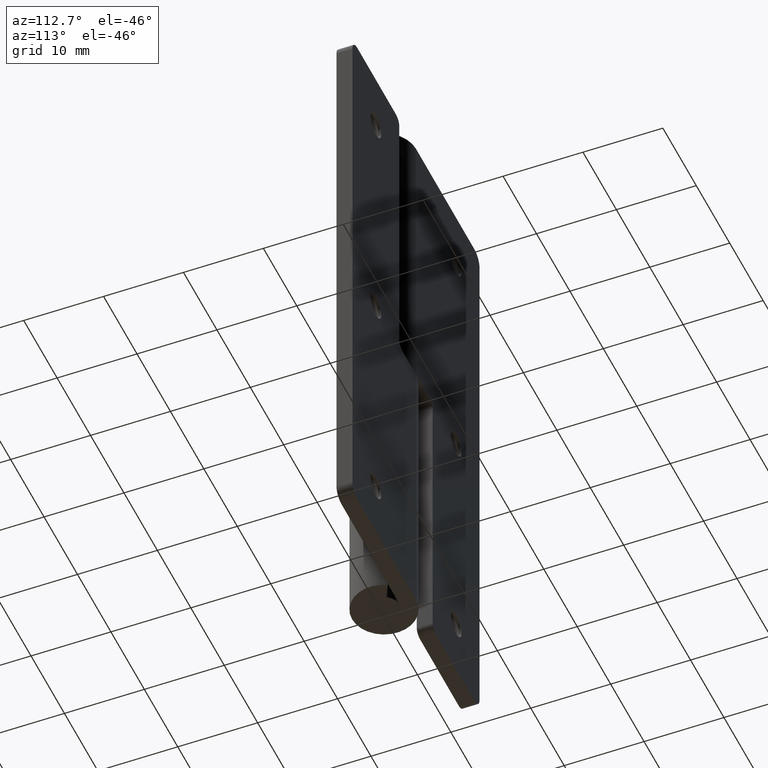
[diagram: clean part render]
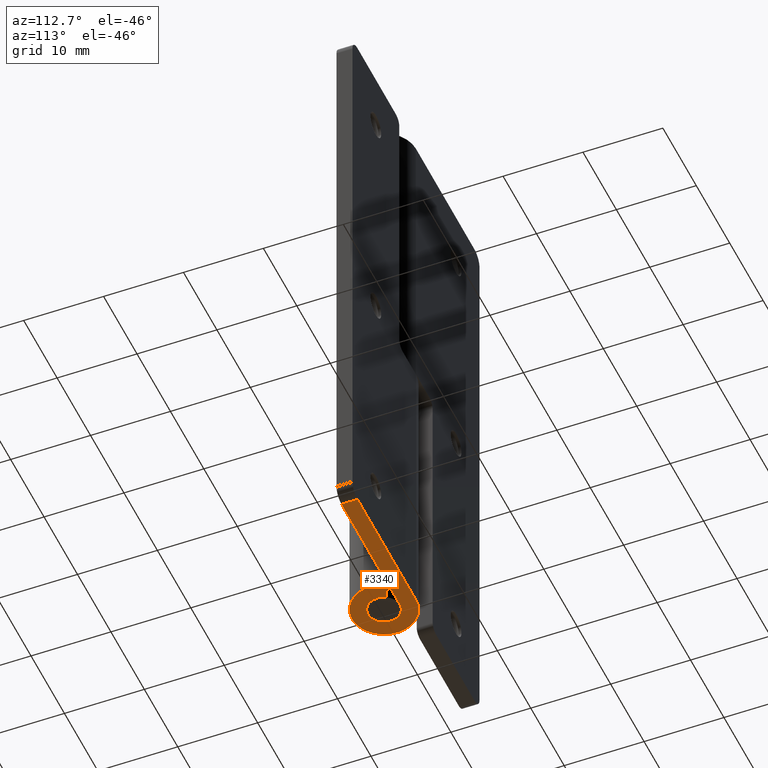
[diagram: same view with one face highlighted and labeled with its STEP entity id]
A machine part, auxiliary view. The second image highlights one B-rep face of the part: STEP entity #3340.
In plain terms, the highlighted face is a freeform B-spline surface patch.
Its self-contained STEP definition (entity closure, byte-faithful):
#3224=CARTESIAN_POINT('',(17.500000000000000,2.0,0.0));
#3225=VERTEX_POINT('',#3224);
#3241=CARTESIAN_POINT('',(17.500000000000000,4.0,9.947598E-014));
#3242=VERTEX_POINT('',#3241);
#3243=CARTESIAN_POINT('',(17.500000000000000,4.0,9.947598E-014));
#3244=CARTESIAN_POINT('',(17.500000000000000,2.0,0.0));
#3245=QUASI_UNIFORM_CURVE('',1,(#3243,#3244),.UNSPECIFIED.,.F.,.U.);
#3246=EDGE_CURVE('',#3242,#3225,#3245,.T.);
#3271=CARTESIAN_POINT('',(-5.073885747203446,-4.399443548250206,0.0));
#3272=CARTESIAN_POINT('',(18.573923669584751,-4.399443548250206,0.0));
#3273=CARTESIAN_POINT('',(-5.073885747203446,4.399592756817439,0.0));
#3274=CARTESIAN_POINT('',(18.573923669584751,4.399592756817439,0.0));
#3275=B_SPLINE_SURFACE_WITH_KNOTS('',1,1,((#3271,#3273),(#3272,#3274)),.UNSPECIFIED.,.F.,.F.,.U.,(2,2),(2,2),(0.0,23.647809416788199),(0.0,8.799036305067645),.UNSPECIFIED.);
#3276=ORIENTED_EDGE('',*,*,#3246,.T.);
#3277=CARTESIAN_POINT('',(0.0,2.0,0.0));
#3278=VERTEX_POINT('',#3277);
#3279=CARTESIAN_POINT('',(17.500000000000000,2.0,0.0));
#3280=CARTESIAN_POINT('',(0.0,2.0,0.0));
#3281=QUASI_UNIFORM_CURVE('',1,(#3279,#3280),.UNSPECIFIED.,.F.,.U.);
#3282=EDGE_CURVE('',#3225,#3278,#3281,.T.);
#3283=ORIENTED_EDGE('',*,*,#3282,.T.);
#3284=CARTESIAN_POINT('',(1.746245973510030,0.975000000000000,0.0));
#3285=VERTEX_POINT('',#3284);
#3286=CARTESIAN_POINT('',(1.746245973510032,0.975000000000001,0.0));
#3287=CARTESIAN_POINT('',(2.491610205976324,-0.359963374095030,0.0));
#3288=CARTESIAN_POINT('',(1.398885102223679,-1.429377651559114,0.0));
#3289=CARTESIAN_POINT('',(0.306159998471033,-2.498791929023199,0.0));
#3290=CARTESIAN_POINT('',(-1.012422836565829,-1.724818831066034,0.0));
#3291=CARTESIAN_POINT('',(-2.331005671602691,-0.950845733108871,0.0));
#3292=CARTESIAN_POINT('',(-1.929978971664208,0.524577133445564,0.0));
#3293=CARTESIAN_POINT('',(-1.528952271725726,2.000000000000000,0.0));
#3294=CARTESIAN_POINT('',(0.0,2.0,0.0));
#3302=(BOUNDED_CURVE()B_SPLINE_CURVE(2,(#3286,#3287,#3288,#3289,#3290,#3291,#3292,#3293,#3294),.UNSPECIFIED.,.F.,.U.)B_SPLINE_CURVE_WITH_KNOTS((3,2,2,2,3),(0.0,0.250000000000000,0.500000000000000,0.750000000000000,1.0),.UNSPECIFIED.)CURVE()GEOMETRIC_REPRESENTATION_ITEM()RATIONAL_B_SPLINE_CURVE((1.0,0.794445897063728,1.0,0.794445897063728,1.0,0.794445897063728,1.0,0.794445897063728,1.0))REPRESENTATION_ITEM(''));
#3303=EDGE_CURVE('',#3285,#3278,#3302,.T.);
#3304=ORIENTED_EDGE('',*,*,#3303,.F.);
#3305=CARTESIAN_POINT('',(3.492491947020065,1.950000000000000,0.0));
#3306=VERTEX_POINT('',#3305);
#3307=CARTESIAN_POINT('',(1.746245973510030,0.975000000000000,0.0));
#3308=CARTESIAN_POINT('',(3.492491947020065,1.950000000000000,0.0));
#3309=QUASI_UNIFORM_CURVE('',1,(#3307,#3308),.UNSPECIFIED.,.F.,.U.);
#3310=EDGE_CURVE('',#3285,#3306,#3309,.T.);
#3311=ORIENTED_EDGE('',*,*,#3310,.T.);
#3312=CARTESIAN_POINT('',(0.0,4.0,0.0));
#3313=VERTEX_POINT('',#3312);
#3314=CARTESIAN_POINT('',(3.492491947020065,1.949999999999999,0.0));
#3315=CARTESIAN_POINT('',(4.983220411952646,-0.719926748190065,0.0));
#3316=CARTESIAN_POINT('',(2.797770204447355,-2.858755303118231,0.0));
#3317=CARTESIAN_POINT('',(0.612319996942063,-4.997583858046395,0.0));
#3318=CARTESIAN_POINT('',(-2.024845673131658,-3.449637662132068,0.0));
#3319=CARTESIAN_POINT('',(-4.662011343205381,-1.901691466217742,0.0));
#3320=CARTESIAN_POINT('',(-3.859957943328416,1.049154266891129,0.0));
#3321=CARTESIAN_POINT('',(-3.057904543451453,4.0,0.0));
#3322=CARTESIAN_POINT('',(0.0,4.0,0.0));
#3330=(BOUNDED_CURVE()B_SPLINE_CURVE(2,(#3314,#3315,#3316,#3317,#3318,#3319,#3320,#3321,#3322),.UNSPECIFIED.,.F.,.U.)B_SPLINE_CURVE_WITH_KNOTS((3,2,2,2,3),(0.0,0.250000000000000,0.500000000000000,0.750000000000000,1.0),.UNSPECIFIED.)CURVE()GEOMETRIC_REPRESENTATION_ITEM()RATIONAL_B_SPLINE_CURVE((1.0,0.794445897063728,1.0,0.794445897063728,1.0,0.794445897063728,1.0,0.794445897063728,1.0))REPRESENTATION_ITEM(''));
#3331=EDGE_CURVE('',#3306,#3313,#3330,.T.);
#3332=ORIENTED_EDGE('',*,*,#3331,.T.);
#3333=CARTESIAN_POINT('',(0.0,4.0,0.0));
#3334=CARTESIAN_POINT('',(17.500000000000000,4.0,9.947598E-014));
#3335=QUASI_UNIFORM_CURVE('',1,(#3333,#3334),.UNSPECIFIED.,.F.,.U.);
#3336=EDGE_CURVE('',#3313,#3242,#3335,.T.);
#3337=ORIENTED_EDGE('',*,*,#3336,.T.);
#3338=EDGE_LOOP('',(#3276,#3283,#3304,#3311,#3332,#3337));
#3339=FACE_OUTER_BOUND('',#3338,.T.);
#3340=ADVANCED_FACE('',(#3339),#3275,.F.);